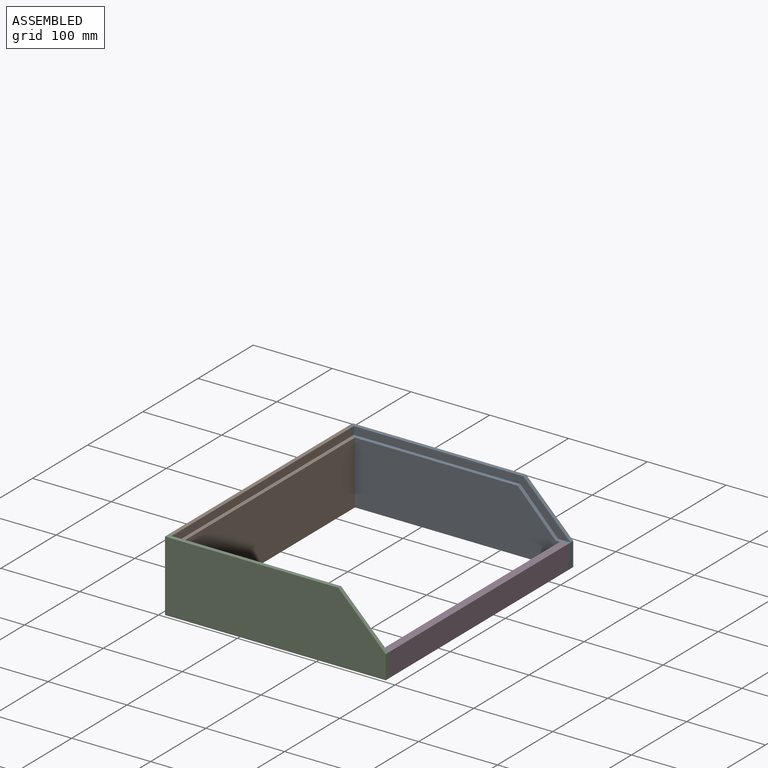
[diagram: assembled view]
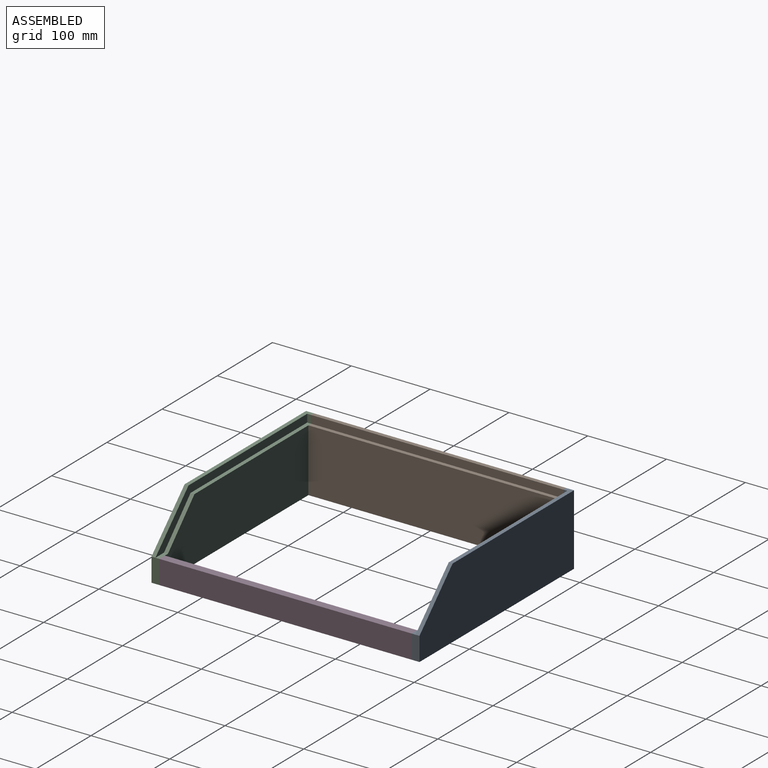
[diagram: assembled view, second angle]
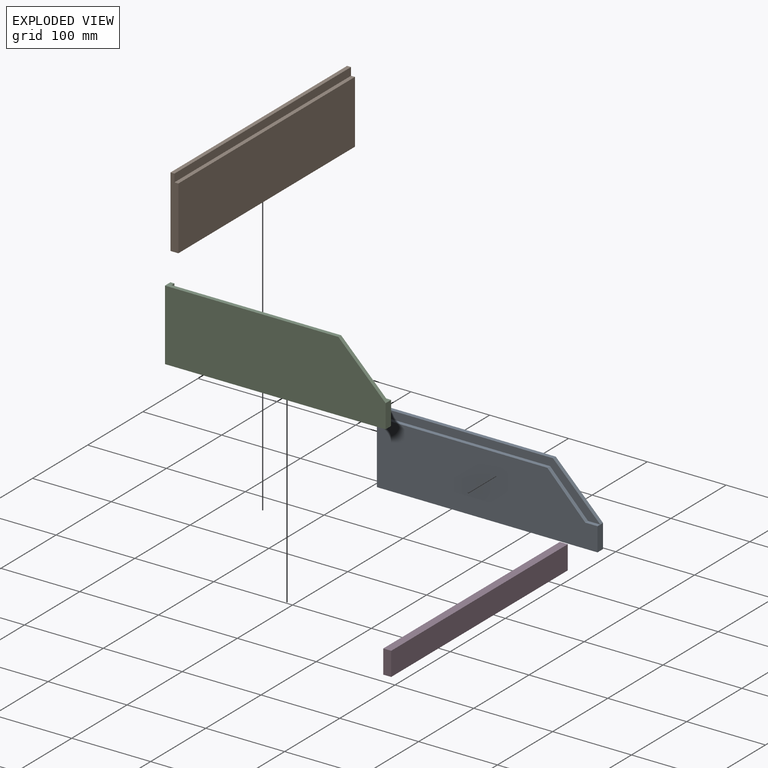
[diagram: exploded view]
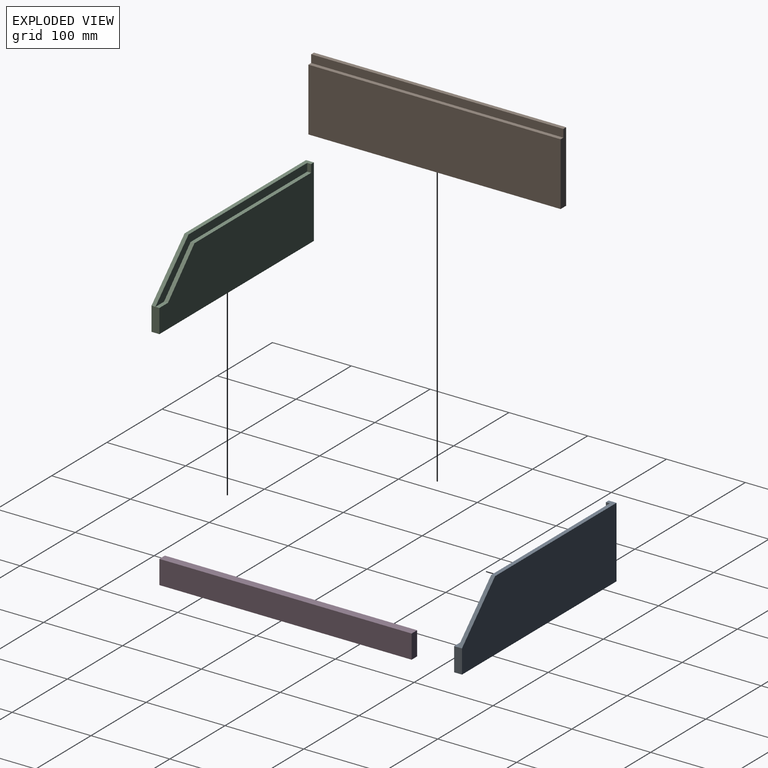
[diagram: exploded view, second angle]
ASSEMBLY  parts=4 mates=3
PART A: 12 faces, bbox 280x10x90 mm
  f0: plane 60x60mm, normal (0.71,0,0.71), area 424.3mm2, adj f1,f4,f6,f11
  f1: plane 220x10mm, normal (0,0,1), area 1125mm2, adj f0,f2,f5,f6,f7,f11
  f2: plane 90x10mm, normal (-1,0,0), area 900mm2, adj f1,f3,f5,f6
  f3: plane 280x10mm, normal (0,0,-1), area 2800mm2, adj f2,f4,f5,f6
  f4: plane 30x10mm, normal (1,0,0), area 300mm2, adj f0,f3,f5,f6,f10
  f5: plane 280x90mm, normal (0,-1,0), area 20469mm2, adj f1,f2,f3,f4,f7,f8,f9,f10
  f6: plane 280x90mm, normal (0,1,0), area 23400mm2, adj f0,f1,f2,f3,f4
  f7: plane 10x5mm, normal (1,0,0), area 50mm2, adj f1,f5,f8,f11
  f8: plane 211.38x5mm, normal (0,0,1), area 1056.9mm2, adj f5,f7,f9,f11
  f9: plane 50x48mm, normal (0.72,0,0.69), area 346.6mm2, adj f5,f8,f10,f11
  f10: plane 15.62x5mm, normal (0,0,1), area 78.1mm2, adj f4,f5,f9,f11
  f11: plane 275x60mm, normal (0,-1,0), area 2931mm2, adj f0,f1,f7,f8,f9,f10
PART B: 8 faces, bbox 320x10x90 mm
  f0: plane 90x10mm, normal (-1,0,0), area 850mm2, adj f1,f2,f4,f5,f6,f7
  f1: plane 320x5mm, normal (0,0,1), area 1600mm2, adj f0,f3,f5,f7
  f2: plane 320x10mm, normal (0,0,-1), area 3200mm2, adj f0,f3,f4,f5
  f3: plane 90x10mm, normal (1,0,0), area 850mm2, adj f1,f2,f4,f5,f6,f7
  f4: plane 320x80mm, normal (0,-1,0), area 25600mm2, adj f0,f2,f3,f6
  f5: plane 320x90mm, normal (0,1,0), area 28800mm2, adj f0,f1,f2,f3
  f6: plane 320x5mm, normal (0,0,1), area 1600mm2, adj f0,f3,f4,f7
  f7: plane 320x10mm, normal (0,-1,0), area 3200mm2, adj f0,f1,f3,f6
PART C: 12 faces, bbox 280x10x90 mm
  f0: plane 220x10mm, normal (0,0,1), area 1125mm2, adj f1,f4,f5,f6,f7,f11
  f1: plane 90x10mm, normal (-1,0,0), area 900mm2, adj f0,f2,f5,f6
  f2: plane 280x10mm, normal (0,0,-1), area 2800mm2, adj f1,f3,f5,f6
  f3: plane 30x10mm, normal (1,0,0), area 300mm2, adj f2,f4,f5,f6,f8
  f4: plane 60x60mm, normal (0.71,0,0.71), area 424.3mm2, adj f0,f3,f5,f11
  f5: plane 280x90mm, normal (0,-1,0), area 23400mm2, adj f0,f1,f2,f3,f4
  f6: plane 280x90mm, normal (0,1,0), area 20469mm2, adj f0,f1,f2,f3,f7,f8,f9,f10
  f7: plane 10x5mm, normal (1,0,0), area 50mm2, adj f0,f6,f10,f11
  f8: plane 15.62x5mm, normal (0,0,1), area 78.1mm2, adj f3,f6,f9,f11
  f9: plane 50x48mm, normal (0.72,0,0.69), area 346.6mm2, adj f6,f8,f10,f11
  f10: plane 211.38x5mm, normal (0,0,1), area 1056.9mm2, adj f6,f7,f9,f11
  f11: plane 275x60mm, normal (0,1,0), area 2931mm2, adj f0,f4,f7,f8,f9,f10
PART D: 6 faces, bbox 320x10x30 mm
  f0: plane 30x10mm, normal (-1,0,0), area 300mm2, adj f1,f3,f4,f5
  f1: plane 320x10mm, normal (0,0,-1), area 3200mm2, adj f0,f2,f4,f5
  f2: plane 30x10mm, normal (1,0,0), area 300mm2, adj f1,f3,f4,f5
  f3: plane 320x10mm, normal (0,0,1), area 3200mm2, adj f0,f2,f4,f5
  f4: plane 320x30mm, normal (0,-1,0), area 9600mm2, adj f0,f1,f2,f3
  f5: plane 320x30mm, normal (0,1,0), area 9600mm2, adj f0,f1,f2,f3
PLACE A t=(-25.33,445.04,-3.74)mm
PLACE B rot(axis=(0,0,1),90deg) t=(-25.33,115.04,-3.74)mm
PLACE C t=(-25.33,115.04,-3.74)mm
PLACE D rot(axis=(0,0,1),90deg) t=(244.67,115.04,-3.74)mm
MATE fastened A.f3 <-> B.f2  axis (0,0,1) through (-25.33,435.04,-3.74)mm
MATE fastened D.f1 <-> A.f3  axis (0,0,1) through (254.67,435.04,-3.74)mm
MATE fastened B.f2 <-> C.f2  axis (0,0,1) through (-25.33,115.04,-3.74)mm
